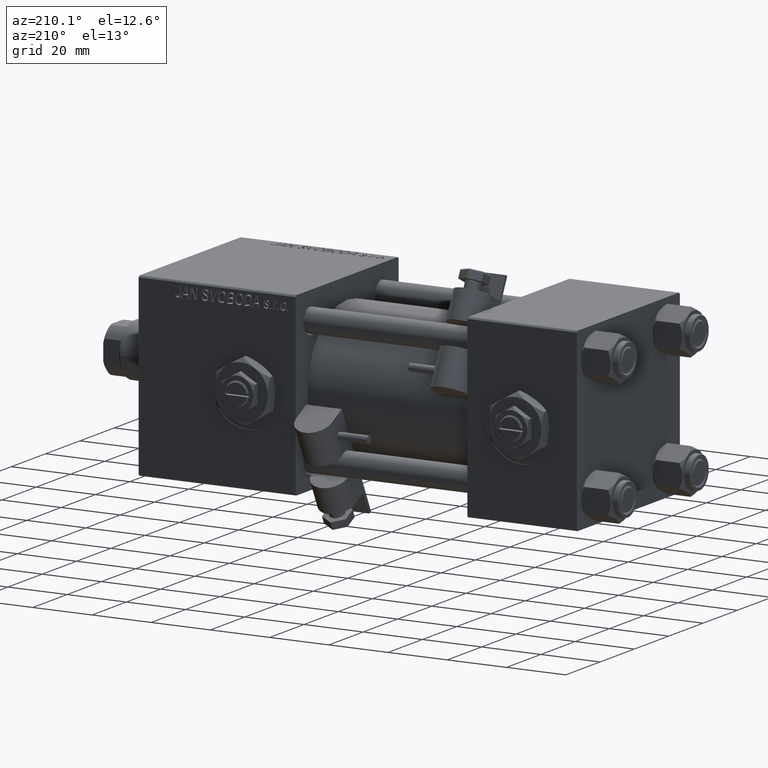
[diagram: clean part render]
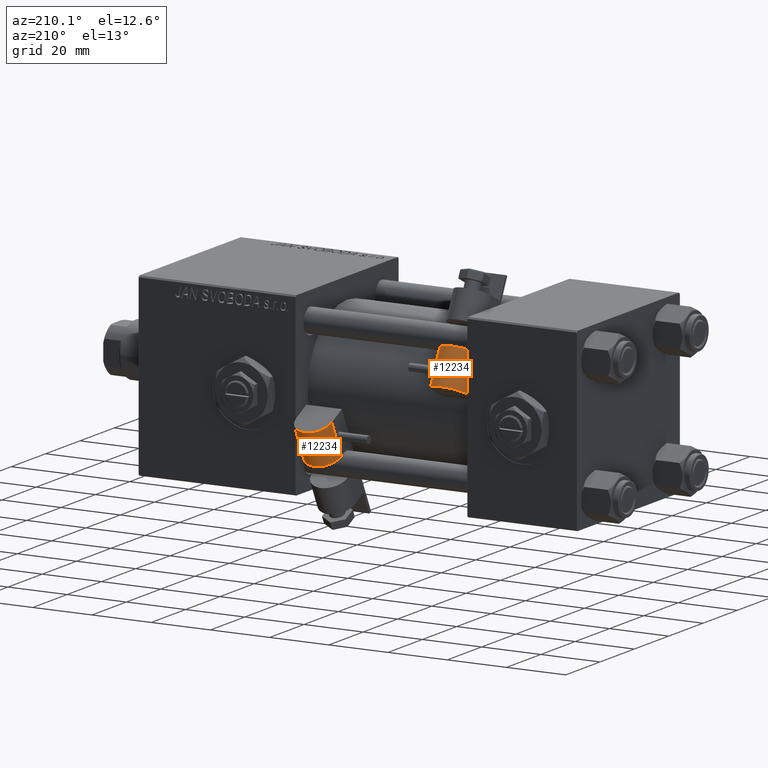
[diagram: same view with one multi-face feature highlighted, each face labeled with its STEP entity id]
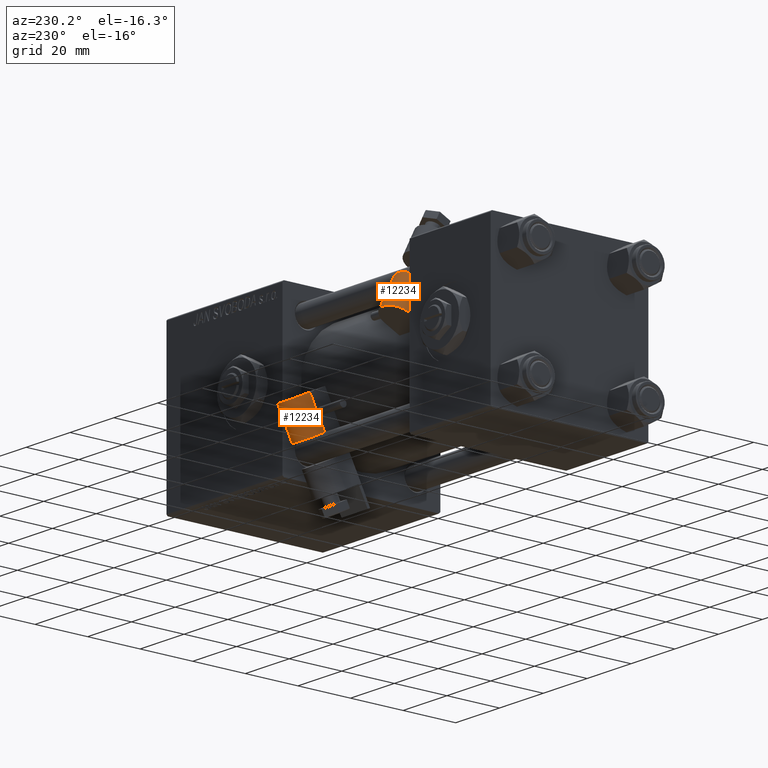
[diagram: same view with one multi-face feature highlighted, each face labeled with its STEP entity id]
A machine part, auxiliary view. The highlighted faces form ONE feature: a constant-radius fillet chain: 2 tangent blend faces with common blend radius 6 mm. The faces share edges in the B-rep.
A second angle (auxiliary view) of the same feature is appended — it is thin or edge-on in the first view.
Their STEP definitions:
[1] entity #12234 (Cylinder):
#758 = AXIS2_PLACEMENT_3D ( 'NONE', #49769, #4200, #33839 ) ;
#1196 = CARTESIAN_POINT ( 'NONE',  ( 30.23999999999999844, 6.500000000000000000, 2.255140518769849223E-14 ) ) ;
#4200 = DIRECTION ( 'NONE',  ( -1.000000000000000000, -0.000000000000000000, -0.000000000000000000 ) ) ;
#5239 = LINE ( 'NONE', #50540, #31486 ) ;
#6929 = CARTESIAN_POINT ( 'NONE',  ( 30.23999999999999844, 6.500000000000000000, -5.999999999999980460 ) ) ;
#8116 = VERTEX_POINT ( 'NONE', #27684 ) ;
#8246 = CYLINDRICAL_SURFACE ( 'NONE', #758, 6.000000000000002665 ) ;
#8292 = CARTESIAN_POINT ( 'NONE',  ( 30.23999999999999844, 6.500000000000000000, -5.999999999999980460 ) ) ;
#9729 = VERTEX_POINT ( 'NONE', #8292 ) ;
#12147 = VERTEX_POINT ( 'NONE', #26075 ) ;
#12234 = ADVANCED_FACE ( 'NONE', ( #33038 ), #8246, .T. ) ;
#13605 = DIRECTION ( 'NONE',  ( -1.000000000000000000, -0.000000000000000000, -0.000000000000000000 ) ) ;
#15141 = ORIENTED_EDGE ( 'NONE', *, *, #29646, .T. ) ;
#15577 = ORIENTED_EDGE ( 'NONE', *, *, #28338, .F. ) ;
#16723 = EDGE_CURVE ( 'NONE', #12147, #8116, #19145, .T. ) ;
#17633 = DIRECTION ( 'NONE',  ( 1.000000000000000000, 0.000000000000000000, 0.000000000000000000 ) ) ;
#19145 = CIRCLE ( 'NONE', #50135, 6.000000000000002665 ) ;
#21529 = CIRCLE ( 'NONE', #37006, 6.000000000000002665 ) ;
#21695 = DIRECTION ( 'NONE',  ( 0.000000000000000000, 0.000000000000000000, -1.000000000000000000 ) ) ;
#26075 = CARTESIAN_POINT ( 'NONE',  ( 17.73999999999999844, 6.500000000000000000, -5.999999999999980460 ) ) ;
#26881 = DIRECTION ( 'NONE',  ( -1.000000000000000000, -0.000000000000000000, -0.000000000000000000 ) ) ;
#27684 = CARTESIAN_POINT ( 'NONE',  ( 17.73999999999999844, 6.499999999999999112, 6.000000000000006217 ) ) ;
#28338 = EDGE_CURVE ( 'NONE', #45647, #8116, #5239, .T. ) ;
#29646 = EDGE_CURVE ( 'NONE', #9729, #12147, #51413, .T. ) ;
#31486 = VECTOR ( 'NONE', #13605, 1000.000000000000000 ) ;
#33038 = FACE_OUTER_BOUND ( 'NONE', #49149, .T. ) ;
#33839 = DIRECTION ( 'NONE',  ( 0.000000000000000000, 0.000000000000000000, 1.000000000000000000 ) ) ;
#34077 = DIRECTION ( 'NONE',  ( 0.000000000000000000, 0.000000000000000000, -1.000000000000000000 ) ) ;
#37006 = AXIS2_PLACEMENT_3D ( 'NONE', #1196, #17633, #34077 ) ;
#37318 = CARTESIAN_POINT ( 'NONE',  ( 17.73999999999999844, 6.500000000000000000, 2.255140518769849223E-14 ) ) ;
#38388 = VECTOR ( 'NONE', #26881, 1000.000000000000000 ) ;
#41814 = EDGE_CURVE ( 'NONE', #9729, #45647, #21529, .T. ) ;
#45343 = ORIENTED_EDGE ( 'NONE', *, *, #16723, .T. ) ;
#45647 = VERTEX_POINT ( 'NONE', #48764 ) ;
#48607 = ORIENTED_EDGE ( 'NONE', *, *, #41814, .F. ) ;
#48764 = CARTESIAN_POINT ( 'NONE',  ( 30.23999999999999844, 6.499999999999999112, 6.000000000000006217 ) ) ;
#49149 = EDGE_LOOP ( 'NONE', ( #45343, #15577, #48607, #15141 ) ) ;
#49743 = DIRECTION ( 'NONE',  ( 1.000000000000000000, 0.000000000000000000, 0.000000000000000000 ) ) ;
#49769 = CARTESIAN_POINT ( 'NONE',  ( 30.23999999999999844, 6.500000000000000000, 2.255140518769849223E-14 ) ) ;
#50135 = AXIS2_PLACEMENT_3D ( 'NONE', #37318, #49743, #21695 ) ;
#50540 = CARTESIAN_POINT ( 'NONE',  ( 30.23999999999999844, 6.499999999999999112, 6.000000000000006217 ) ) ;
#51413 = LINE ( 'NONE', #6929, #38388 ) ;
[2] entity #12234 (Cylinder):
#758 = AXIS2_PLACEMENT_3D ( 'NONE', #49769, #4200, #33839 ) ;
#1196 = CARTESIAN_POINT ( 'NONE',  ( 30.23999999999999844, 6.500000000000000000, 2.255140518769849223E-14 ) ) ;
#4200 = DIRECTION ( 'NONE',  ( -1.000000000000000000, -0.000000000000000000, -0.000000000000000000 ) ) ;
#5239 = LINE ( 'NONE', #50540, #31486 ) ;
#6929 = CARTESIAN_POINT ( 'NONE',  ( 30.23999999999999844, 6.500000000000000000, -5.999999999999980460 ) ) ;
#8116 = VERTEX_POINT ( 'NONE', #27684 ) ;
#8246 = CYLINDRICAL_SURFACE ( 'NONE', #758, 6.000000000000002665 ) ;
#8292 = CARTESIAN_POINT ( 'NONE',  ( 30.23999999999999844, 6.500000000000000000, -5.999999999999980460 ) ) ;
#9729 = VERTEX_POINT ( 'NONE', #8292 ) ;
#12147 = VERTEX_POINT ( 'NONE', #26075 ) ;
#12234 = ADVANCED_FACE ( 'NONE', ( #33038 ), #8246, .T. ) ;
#13605 = DIRECTION ( 'NONE',  ( -1.000000000000000000, -0.000000000000000000, -0.000000000000000000 ) ) ;
#15141 = ORIENTED_EDGE ( 'NONE', *, *, #29646, .T. ) ;
#15577 = ORIENTED_EDGE ( 'NONE', *, *, #28338, .F. ) ;
#16723 = EDGE_CURVE ( 'NONE', #12147, #8116, #19145, .T. ) ;
#17633 = DIRECTION ( 'NONE',  ( 1.000000000000000000, 0.000000000000000000, 0.000000000000000000 ) ) ;
#19145 = CIRCLE ( 'NONE', #50135, 6.000000000000002665 ) ;
#21529 = CIRCLE ( 'NONE', #37006, 6.000000000000002665 ) ;
#21695 = DIRECTION ( 'NONE',  ( 0.000000000000000000, 0.000000000000000000, -1.000000000000000000 ) ) ;
#26075 = CARTESIAN_POINT ( 'NONE',  ( 17.73999999999999844, 6.500000000000000000, -5.999999999999980460 ) ) ;
#26881 = DIRECTION ( 'NONE',  ( -1.000000000000000000, -0.000000000000000000, -0.000000000000000000 ) ) ;
#27684 = CARTESIAN_POINT ( 'NONE',  ( 17.73999999999999844, 6.499999999999999112, 6.000000000000006217 ) ) ;
#28338 = EDGE_CURVE ( 'NONE', #45647, #8116, #5239, .T. ) ;
#29646 = EDGE_CURVE ( 'NONE', #9729, #12147, #51413, .T. ) ;
#31486 = VECTOR ( 'NONE', #13605, 1000.000000000000000 ) ;
#33038 = FACE_OUTER_BOUND ( 'NONE', #49149, .T. ) ;
#33839 = DIRECTION ( 'NONE',  ( 0.000000000000000000, 0.000000000000000000, 1.000000000000000000 ) ) ;
#34077 = DIRECTION ( 'NONE',  ( 0.000000000000000000, 0.000000000000000000, -1.000000000000000000 ) ) ;
#37006 = AXIS2_PLACEMENT_3D ( 'NONE', #1196, #17633, #34077 ) ;
#37318 = CARTESIAN_POINT ( 'NONE',  ( 17.73999999999999844, 6.500000000000000000, 2.255140518769849223E-14 ) ) ;
#38388 = VECTOR ( 'NONE', #26881, 1000.000000000000000 ) ;
#41814 = EDGE_CURVE ( 'NONE', #9729, #45647, #21529, .T. ) ;
#45343 = ORIENTED_EDGE ( 'NONE', *, *, #16723, .T. ) ;
#45647 = VERTEX_POINT ( 'NONE', #48764 ) ;
#48607 = ORIENTED_EDGE ( 'NONE', *, *, #41814, .F. ) ;
#48764 = CARTESIAN_POINT ( 'NONE',  ( 30.23999999999999844, 6.499999999999999112, 6.000000000000006217 ) ) ;
#49149 = EDGE_LOOP ( 'NONE', ( #45343, #15577, #48607, #15141 ) ) ;
#49743 = DIRECTION ( 'NONE',  ( 1.000000000000000000, 0.000000000000000000, 0.000000000000000000 ) ) ;
#49769 = CARTESIAN_POINT ( 'NONE',  ( 30.23999999999999844, 6.500000000000000000, 2.255140518769849223E-14 ) ) ;
#50135 = AXIS2_PLACEMENT_3D ( 'NONE', #37318, #49743, #21695 ) ;
#50540 = CARTESIAN_POINT ( 'NONE',  ( 30.23999999999999844, 6.499999999999999112, 6.000000000000006217 ) ) ;
#51413 = LINE ( 'NONE', #6929, #38388 ) ;